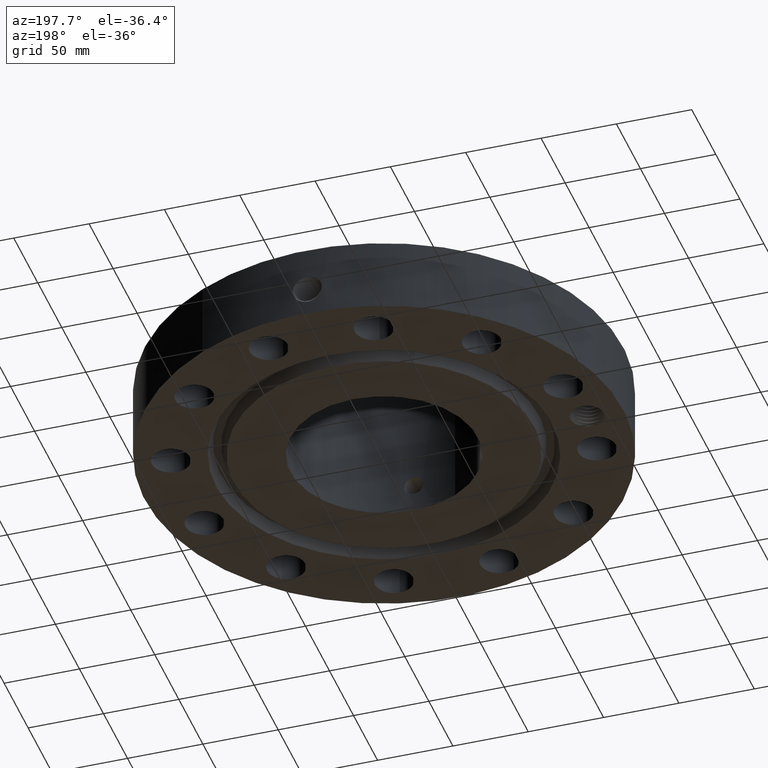
[diagram: clean part render]
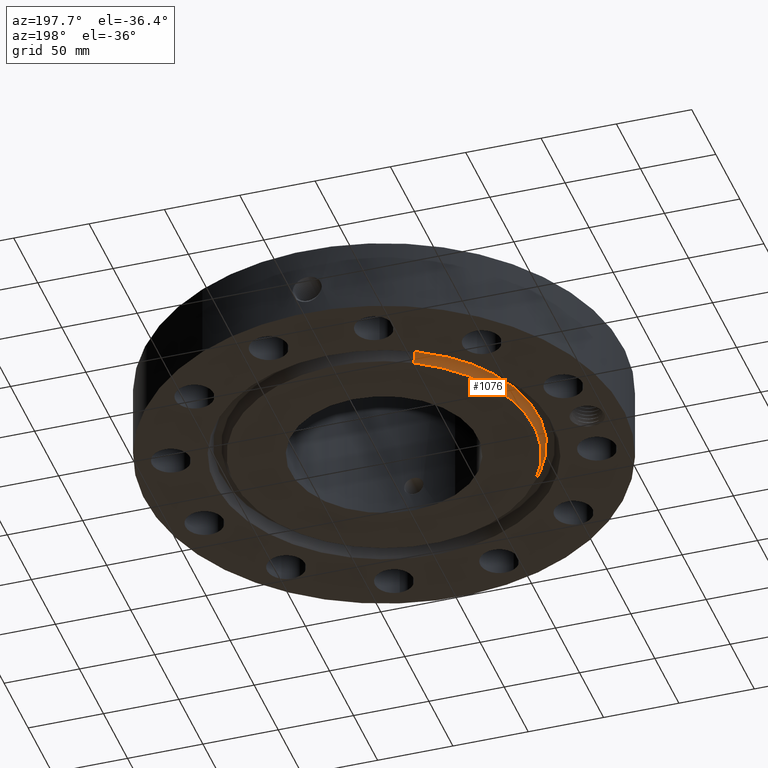
[diagram: same view with one face highlighted and labeled with its STEP entity id]
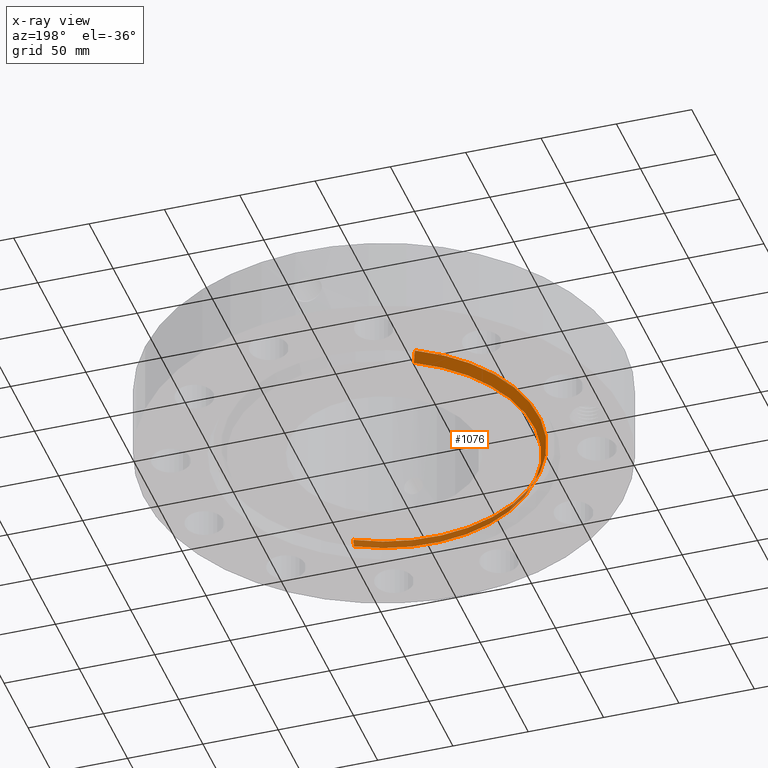
[diagram: x-ray of the same camera — body ghosted, the highlighted face saturated]
A machine part, auxiliary view. The second image highlights one B-rep face of the part: STEP entity #1076.
The next image is the same camera in x-ray: the body ghosted, the highlighted face saturated — about 0% of this face is hidden behind the body in this view.
In plain terms, the highlighted conical surface has half-angle 23 deg.
Its self-contained STEP definition (entity closure, byte-faithful):
#611=AXIS2_PLACEMENT_3D('Circle Axis2P3D',#609,#610,$) ;
#1037=AXIS2_PLACEMENT_3D('Cone Axis2P3D',#1034,#1035,#1036) ;
#1067=AXIS2_PLACEMENT_3D('Circle Axis2P3D',#1065,#1066,$) ;
#604=CARTESIAN_POINT('Vertex',(-1.88006724964,3.44144001647,0.)) ;
#606=CARTESIAN_POINT('Vertex',(1.88006724964,-3.44144001647,8.74191357973E-018)) ;
#609=CARTESIAN_POINT('Axis2P3D Location',(5.59482469102E-016,0.,0.)) ;
#1034=CARTESIAN_POINT('Axis2P3D Location',(0.,0.,-0.0600000000002)) ;
#1039=CARTESIAN_POINT('Line Origine',(-1.90995405375,3.49614744443,0.146860966928)) ;
#1043=CARTESIAN_POINT('Vertex',(-1.93984085786,3.5508548724,0.293721933856)) ;
#1050=CARTESIAN_POINT('Vertex',(1.93984085786,-3.5508548724,0.293721933856)) ;
#1053=CARTESIAN_POINT('Line Origine',(1.90995405375,-3.49614744443,0.146860966928)) ;
#1065=CARTESIAN_POINT('Axis2P3D Location',(0.,0.,0.293721933856)) ;
#610=DIRECTION('Axis2P3D Direction',(0.,0.,-0.0393700787402)) ;
#1035=DIRECTION('Axis2P3D Direction',(0.,0.,0.0393700787402)) ;
#1036=DIRECTION('Axis2P3D XDirection',(-0.0188750212049,0.0345504945626,0.)) ;
#1040=DIRECTION('Vector Direction',(-0.00737505833565,0.0134999537303,0.0362403485611)) ;
#1054=DIRECTION('Vector Direction',(0.00737505833565,-0.0134999537303,0.0362403485611)) ;
#1066=DIRECTION('Axis2P3D Direction',(0.,0.,0.0393700787402)) ;
#1041=VECTOR('Line Direction',#1040,0.0393700787402) ;
#1055=VECTOR('Line Direction',#1054,0.0393700787402) ;
#1071=ORIENTED_EDGE('',*,*,#1057,.F.) ;
#1072=ORIENTED_EDGE('',*,*,#1069,.F.) ;
#1073=ORIENTED_EDGE('',*,*,#1045,.T.) ;
#1074=ORIENTED_EDGE('',*,*,#613,.F.) ;
#1076=ADVANCED_FACE('PartBody',(#1075),#1038,.T.) ;
#612=CIRCLE('generated circle',#611,3.92150000002) ;
#1068=CIRCLE('generated circle',#1067,4.04617756391) ;
#1038=CONICAL_SURFACE('Cone',#1037,3.89603151104,0.401425727959) ;
#613=EDGE_CURVE('',#607,#605,#612,.T.) ;
#1045=EDGE_CURVE('',#1044,#605,#1042,.F.) ;
#1057=EDGE_CURVE('',#1051,#607,#1056,.F.) ;
#1069=EDGE_CURVE('',#1044,#1051,#1068,.T.) ;
#1070=EDGE_LOOP('',(#1071,#1072,#1073,#1074)) ;
#1075=FACE_OUTER_BOUND('',#1070,.T.) ;
#1042=LINE('Line',#1039,#1041) ;
#1056=LINE('Line',#1053,#1055) ;
#605=VERTEX_POINT('',#604) ;
#607=VERTEX_POINT('',#606) ;
#1044=VERTEX_POINT('',#1043) ;
#1051=VERTEX_POINT('',#1050) ;